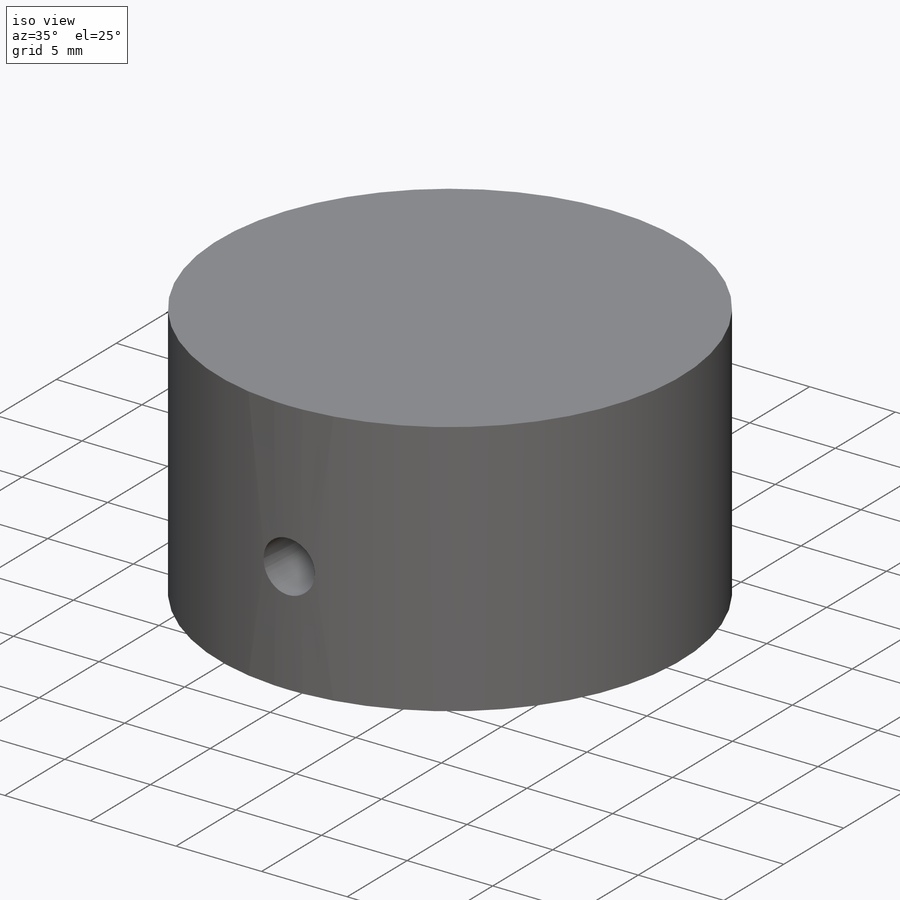
[diagram: iso view]
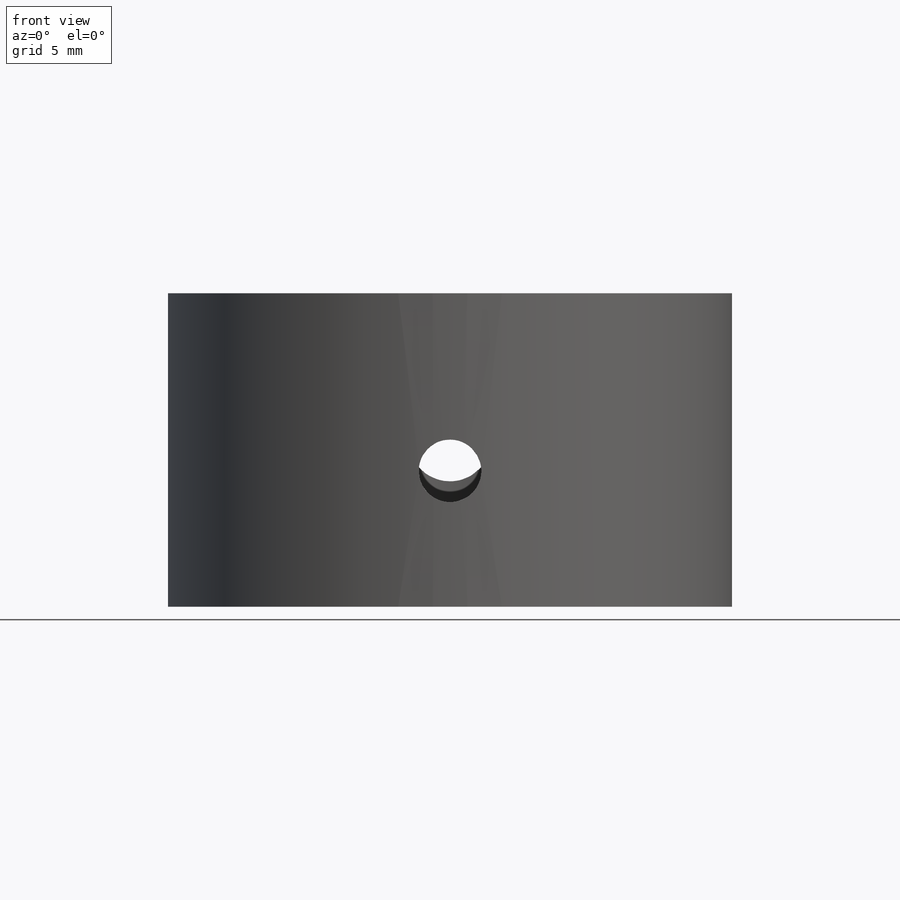
[diagram: front view]
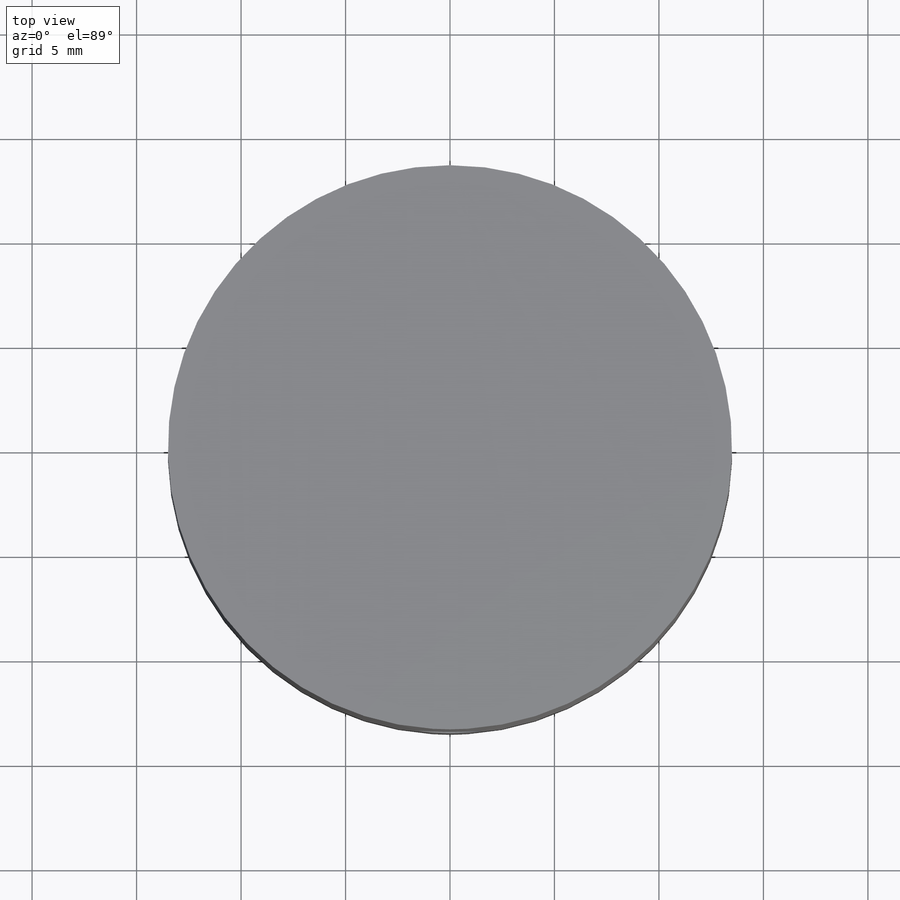
[diagram: top view]
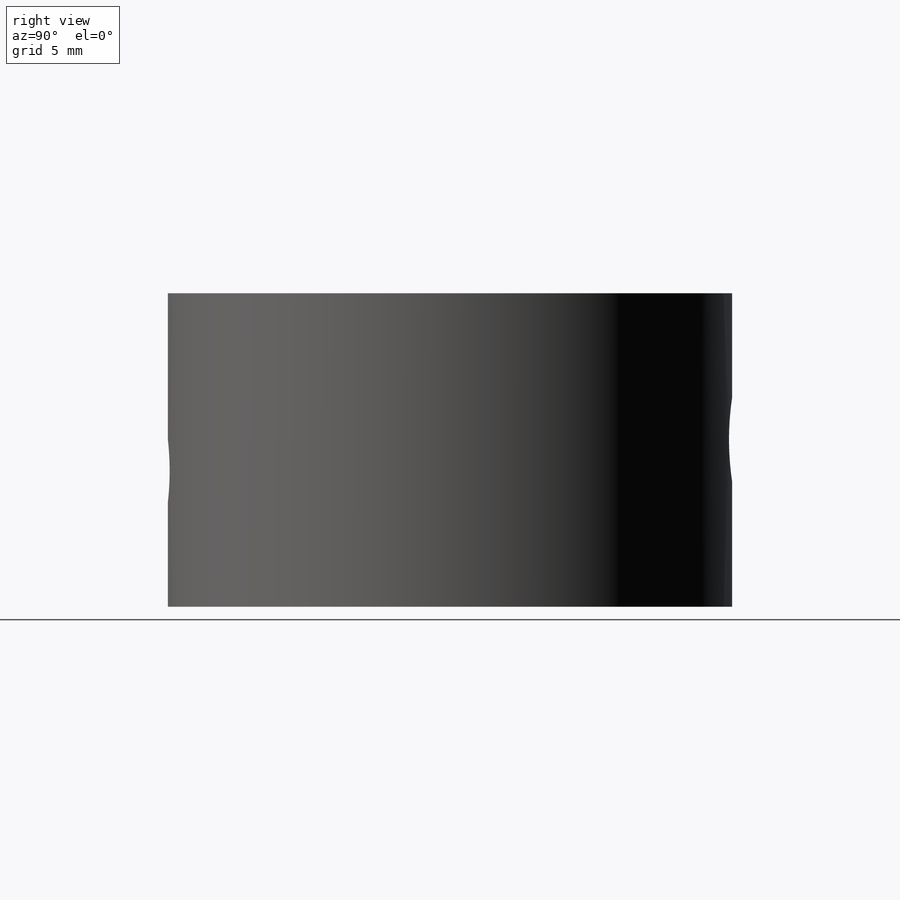
[diagram: right view]
SOLIDWORKS PART (.sldprt)
format: sldprt  version: not decoded by parser v0  size: 285,184 bytes
history: native  units: mm
features: sketch x10, plane x3, extrude x2, move_body x2, cut_extrude x2, material x1, boolean_combine x1 + 1 further entry (+13 scaffold rows collapsed; 5 parser-record rows omitted)
feature tree (40):
  scaffold x13  (default folders/planes/origin — collapsed)
  material  "Materiale <non specificato>"
  plane  "Piano frontale"
  plane  "Piano superiore"
  plane  "Piano destro"
  sketch  "Sketch2"  dims[D1=15.0mm]
  sketch  "Sketch3"  dims[D1=6.0mm D2=8.0mm]
  sketch  "Sketch4"  dims[D1=7.0mm D2=7.0mm]
  sketch  "3DSketch2"
  sketch  "Sketch5"  dims[D1=6.0mm]
  extrude  "Boss-Extrude1"  Depth=7mm
  sketch  "3DSketch3"
  sketch  "Sketch6"  dims[D1=10.0mm D2=100.0mm]
  sketch  "Sketch7"  dims[D1=21.0mm]
  extrude  "Boss-Extrude2"  Depth=3mm
  "cilindro PDMS"
  parser-record x5  (decoder bookkeeping rows leaked as tree rows — omitted from the tree; the rows remain in map.json)
  move_body  "Body-Move/Copy1"
  move_body  "Body-Move/Copy2"
  boolean_combine  "Combine1"
  sketch  "Sketch8"  dims[D1=4.0mm D2=5.0mm]
  cut_extrude  "Cut-Extrude1"  Depth=7.2mm
  sketch  "Sketch9"  dims[D1=3.0mm D2=3.5mm]
  cut_extrude  "Cut-Extrude2"  [1 undecoded]
decode coverage: 11 of 17 modeling features carry decoded parameters; 1 rows unclassified (native names shown)
note: 1 parameter value undecoded
note: suppression state not decoded; provenance and decode notes live in map.json
